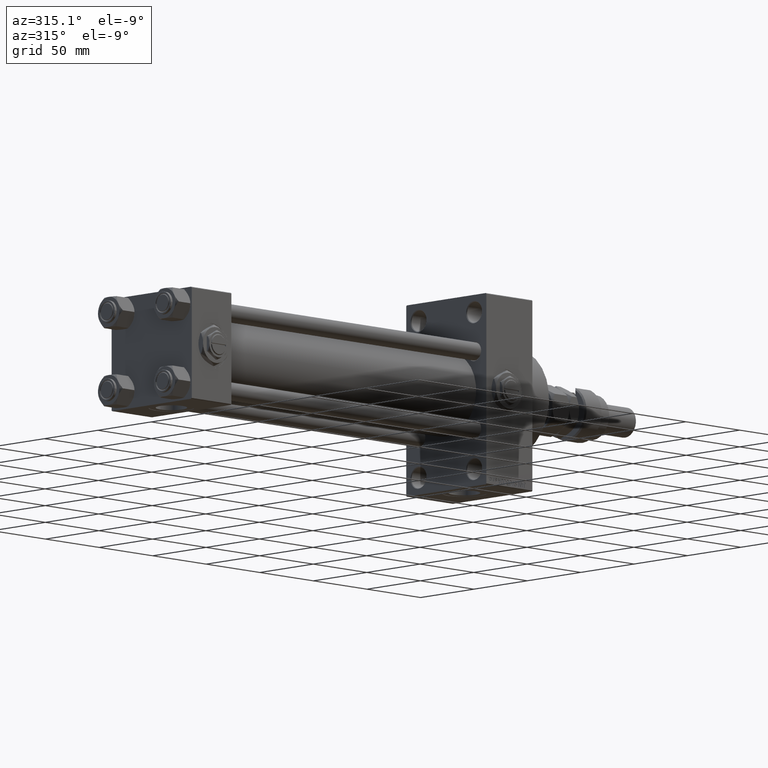
[diagram: clean part render]
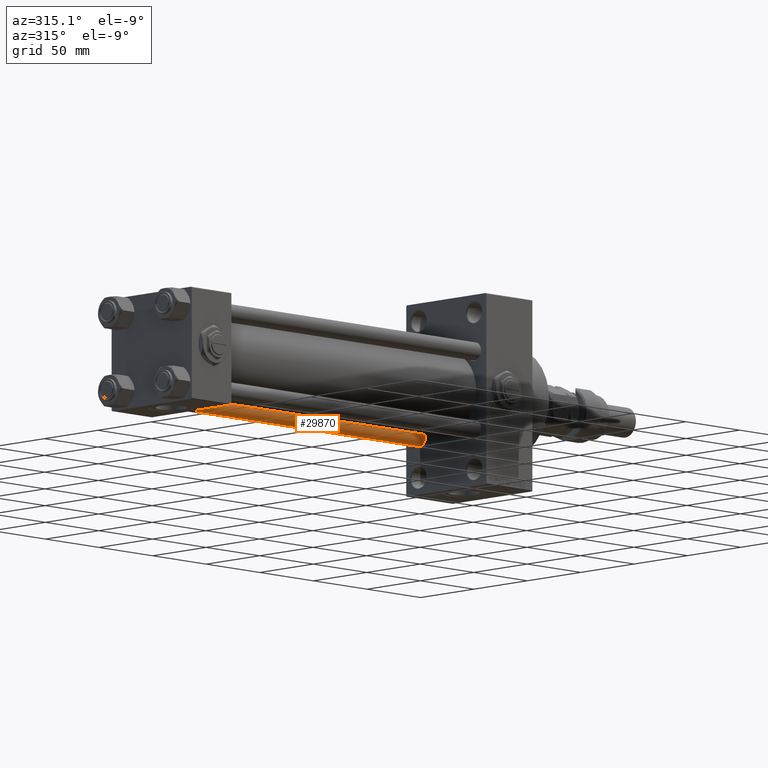
[diagram: same view with one face highlighted and labeled with its STEP entity id]
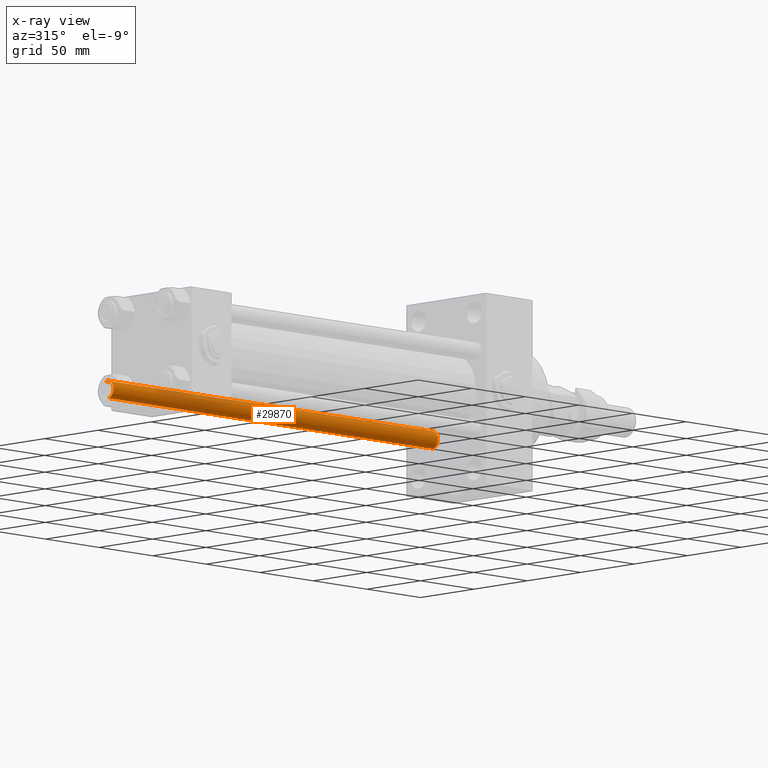
[diagram: x-ray of the same camera — body ghosted, the highlighted face saturated]
A machine part, auxiliary view. The second image highlights one B-rep face of the part: STEP entity #29870.
The next image is the same camera in x-ray: the body ghosted, the highlighted face saturated — about 16% of this face is hidden behind the body in this view.
In plain terms, the highlighted cylindrical surface (edge-blend (fillet) strip) has radius 6 mm, axis along (1, -0, 0).
Its self-contained STEP definition (entity closure, byte-faithful):
#1456 = DIRECTION ( 'NONE',  ( -1.000000000000000000, 0.000000000000000000, 0.000000000000000000 ) ) ;
#1531 = AXIS2_PLACEMENT_3D ( 'NONE', #12843, #37071, #4908 ) ;
#3691 = CARTESIAN_POINT ( 'NONE',  ( 0.000000000000000000, 0.000000000000000000, 0.4999999999999449329 ) ) ;
#4908 = DIRECTION ( 'NONE',  ( 1.000000000000000000, 0.000000000000000000, 0.000000000000000000 ) ) ;
#5161 = DIRECTION ( 'NONE',  ( -0.000000000000000000, -0.000000000000000000, -1.000000000000000000 ) ) ;
#5748 = AXIS2_PLACEMENT_3D ( 'NONE', #13869, #5161, #1456 ) ;
#6582 = AXIS2_PLACEMENT_3D ( 'NONE', #3691, #28486, #36127 ) ;
#9400 = EDGE_CURVE ( 'NONE', #47213, #23657, #47018, .T. ) ;
#12843 = CARTESIAN_POINT ( 'NONE',  ( 0.000000000000000000, 0.000000000000000000, 303.5000000000000000 ) ) ;
#13310 = LINE ( 'NONE', #29110, #29062 ) ;
#13728 = EDGE_LOOP ( 'NONE', ( #37493, #19237, #31968, #34852 ) ) ;
#13869 = CARTESIAN_POINT ( 'NONE',  ( 0.000000000000000000, 0.000000000000000000, 304.0000000000000000 ) ) ;
#18235 = CARTESIAN_POINT ( 'NONE',  ( 6.000000000000000888, 7.347880794884120722E-16, 0.4999999999999449329 ) ) ;
#19237 = ORIENTED_EDGE ( 'NONE', *, *, #29847, .T. ) ;
#21264 = FACE_OUTER_BOUND ( 'NONE', #13728, .T. ) ;
#21515 = CYLINDRICAL_SURFACE ( 'NONE', #5748, 6.000000000000000888 ) ;
#21553 = CARTESIAN_POINT ( 'NONE',  ( -6.000000000000000888, 0.000000000000000000, 303.5000000000000000 ) ) ;
#23657 = VERTEX_POINT ( 'NONE', #18235 ) ;
#24284 = CIRCLE ( 'NONE', #1531, 6.000000000000000888 ) ;
#24373 = CARTESIAN_POINT ( 'NONE',  ( -6.000000000000000888, 0.000000000000000000, 0.4999999999999449329 ) ) ;
#28486 = DIRECTION ( 'NONE',  ( -0.000000000000000000, -0.000000000000000000, 1.000000000000000000 ) ) ;
#29062 = VECTOR ( 'NONE', #45708, 1000.000000000000000 ) ;
#29110 = CARTESIAN_POINT ( 'NONE',  ( 6.000000000000000888, 7.347880794884120722E-16, 304.0000000000000000 ) ) ;
#29847 = EDGE_CURVE ( 'NONE', #41499, #33379, #24284, .T. ) ;
#29870 = ADVANCED_FACE ( 'NONE', ( #21264 ), #21515, .T. ) ;
#31286 = CARTESIAN_POINT ( 'NONE',  ( 6.000000000000000888, 7.347880794884120722E-16, 303.5000000000000000 ) ) ;
#31968 = ORIENTED_EDGE ( 'NONE', *, *, #40066, .T. ) ;
#33379 = VERTEX_POINT ( 'NONE', #21553 ) ;
#34086 = LINE ( 'NONE', #50171, #40941 ) ;
#34852 = ORIENTED_EDGE ( 'NONE', *, *, #9400, .T. ) ;
#36127 = DIRECTION ( 'NONE',  ( 1.000000000000000000, 0.000000000000000000, 0.000000000000000000 ) ) ;
#37071 = DIRECTION ( 'NONE',  ( 0.000000000000000000, 0.000000000000000000, -1.000000000000000000 ) ) ;
#37493 = ORIENTED_EDGE ( 'NONE', *, *, #38250, .F. ) ;
#38250 = EDGE_CURVE ( 'NONE', #41499, #23657, #13310, .T. ) ;
#40066 = EDGE_CURVE ( 'NONE', #33379, #47213, #34086, .T. ) ;
#40941 = VECTOR ( 'NONE', #46234, 1000.000000000000000 ) ;
#41499 = VERTEX_POINT ( 'NONE', #31286 ) ;
#45708 = DIRECTION ( 'NONE',  ( -0.000000000000000000, -0.000000000000000000, -1.000000000000000000 ) ) ;
#46234 = DIRECTION ( 'NONE',  ( -0.000000000000000000, -0.000000000000000000, -1.000000000000000000 ) ) ;
#47018 = CIRCLE ( 'NONE', #6582, 6.000000000000000888 ) ;
#47213 = VERTEX_POINT ( 'NONE', #24373 ) ;
#50171 = CARTESIAN_POINT ( 'NONE',  ( -6.000000000000000888, 0.000000000000000000, 304.0000000000000000 ) ) ;